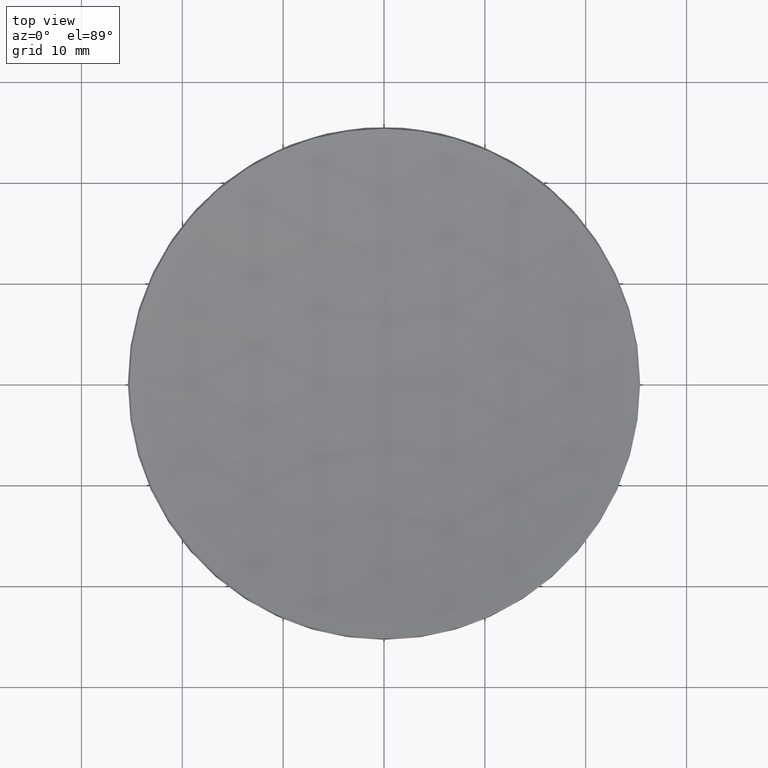
[diagram: clean part render]
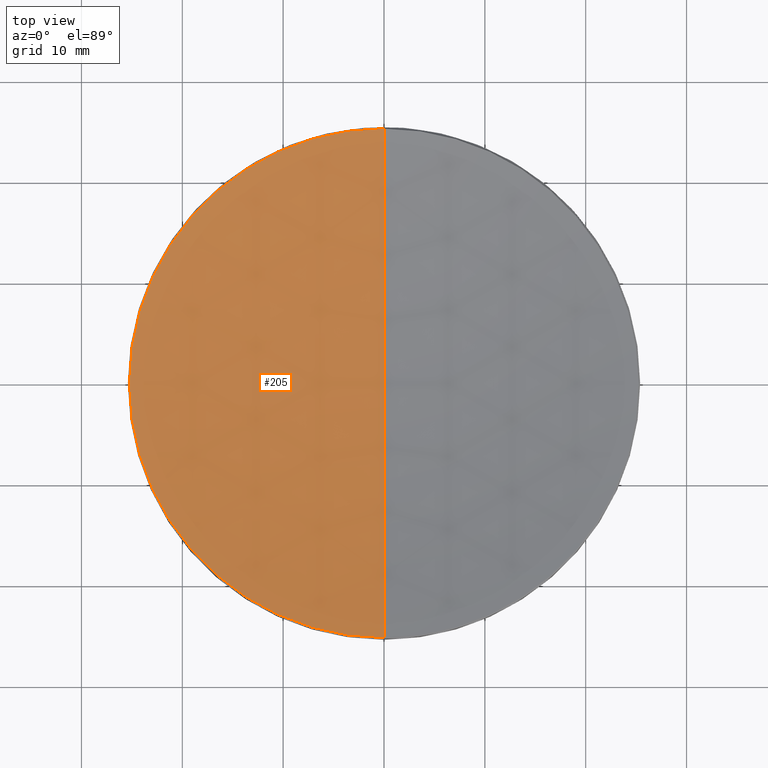
[diagram: same view with one face highlighted and labeled with its STEP entity id]
A machine part, top view. The second image highlights one B-rep face of the part: STEP entity #205.
In plain terms, the highlighted spherical surface has radius 119.32 mm.
Its self-contained STEP definition (entity closure, byte-faithful):
#5 = DIRECTION ( 'NONE',  ( -0.000000000000000000, -0.000000000000000000, 1.000000000000000000 ) ) ;
#12 = CIRCLE ( 'NONE', #36, 25.23567881563414517 ) ;
#13 = EDGE_CURVE ( 'NONE', #264, #82, #73, .T. ) ;
#29 = DIRECTION ( 'NONE',  ( 0.000000000000000000, 0.000000000000000000, -1.000000000000000000 ) ) ;
#36 = AXIS2_PLACEMENT_3D ( 'NONE', #86, #197, #174 ) ;
#52 = EDGE_CURVE ( 'NONE', #245, #82, #12, .T. ) ;
#60 = EDGE_LOOP ( 'NONE', ( #208, #278, #258, #78 ) ) ;
#63 = DIRECTION ( 'NONE',  ( -1.224646799147353207E-16, -1.000000000000000000, 0.000000000000000000 ) ) ;
#71 = CARTESIAN_POINT ( 'NONE',  ( 0.000000000000000000, 25.23567881563418425, 15.66432118436585164 ) ) ;
#73 = CIRCLE ( 'NONE', #155, 119.3200000000000074 ) ;
#74 = DIRECTION ( 'NONE',  ( 0.000000000000000000, 1.000000000000000000, 0.000000000000000000 ) ) ;
#78 = ORIENTED_EDGE ( 'NONE', *, *, #52, .T. ) ;
#82 = VERTEX_POINT ( 'NONE', #218 ) ;
#86 = CARTESIAN_POINT ( 'NONE',  ( 0.000000000000000000, 0.000000000000000000, 15.66432118436585164 ) ) ;
#93 = SPHERICAL_SURFACE ( 'NONE', #150, 119.3200000000000074 ) ;
#110 = FACE_OUTER_BOUND ( 'NONE', #60, .T. ) ;
#133 = EDGE_CURVE ( 'NONE', #233, #245, #279, .T. ) ;
#141 = AXIS2_PLACEMENT_3D ( 'NONE', #149, #5, #270 ) ;
#149 = CARTESIAN_POINT ( 'NONE',  ( 0.000000000000000000, 0.000000000000000000, 15.66432118436585164 ) ) ;
#150 = AXIS2_PLACEMENT_3D ( 'NONE', #202, #225, #74 ) ;
#154 = CARTESIAN_POINT ( 'NONE',  ( 0.000000000000000000, 7.306242803713110362E-15, 12.96517229905352941 ) ) ;
#155 = AXIS2_PLACEMENT_3D ( 'NONE', #214, #171, #63 ) ;
#171 = DIRECTION ( 'NONE',  ( -1.000000000000000000, 1.224646799147353207E-16, 0.000000000000000000 ) ) ;
#174 = DIRECTION ( 'NONE',  ( 1.000000000000000000, 0.000000000000000000, 0.000000000000000000 ) ) ;
#196 = AXIS2_PLACEMENT_3D ( 'NONE', #220, #242, #29 ) ;
#197 = DIRECTION ( 'NONE',  ( -0.000000000000000000, -0.000000000000000000, 1.000000000000000000 ) ) ;
#202 = CARTESIAN_POINT ( 'NONE',  ( 0.000000000000000000, 0.000000000000000000, 132.2851722990535279 ) ) ;
#205 = ADVANCED_FACE ( 'NONE', ( #110 ), #93, .F. ) ;
#208 = ORIENTED_EDGE ( 'NONE', *, *, #13, .F. ) ;
#214 = CARTESIAN_POINT ( 'NONE',  ( 0.000000000000000000, 0.000000000000000000, 132.2851722990535279 ) ) ;
#218 = CARTESIAN_POINT ( 'NONE',  ( -3.090479328587706859E-15, -25.23567881563418425, 15.66432118436585164 ) ) ;
#220 = CARTESIAN_POINT ( 'NONE',  ( 0.000000000000000000, 0.000000000000000000, 132.2851722990535279 ) ) ;
#223 = CARTESIAN_POINT ( 'NONE',  ( -25.23567881563414872, 0.000000000000000000, 15.66432118436585164 ) ) ;
#225 = DIRECTION ( 'NONE',  ( -1.000000000000000000, 0.000000000000000000, 0.000000000000000000 ) ) ;
#233 = VERTEX_POINT ( 'NONE', #71 ) ;
#239 = EDGE_CURVE ( 'NONE', #264, #233, #257, .T. ) ;
#242 = DIRECTION ( 'NONE',  ( 1.000000000000000000, 0.000000000000000000, 0.000000000000000000 ) ) ;
#245 = VERTEX_POINT ( 'NONE', #223 ) ;
#257 = CIRCLE ( 'NONE', #196, 119.3200000000000074 ) ;
#258 = ORIENTED_EDGE ( 'NONE', *, *, #133, .T. ) ;
#264 = VERTEX_POINT ( 'NONE', #154 ) ;
#270 = DIRECTION ( 'NONE',  ( 1.000000000000000000, 0.000000000000000000, 0.000000000000000000 ) ) ;
#278 = ORIENTED_EDGE ( 'NONE', *, *, #239, .T. ) ;
#279 = CIRCLE ( 'NONE', #141, 25.23567881563414517 ) ;